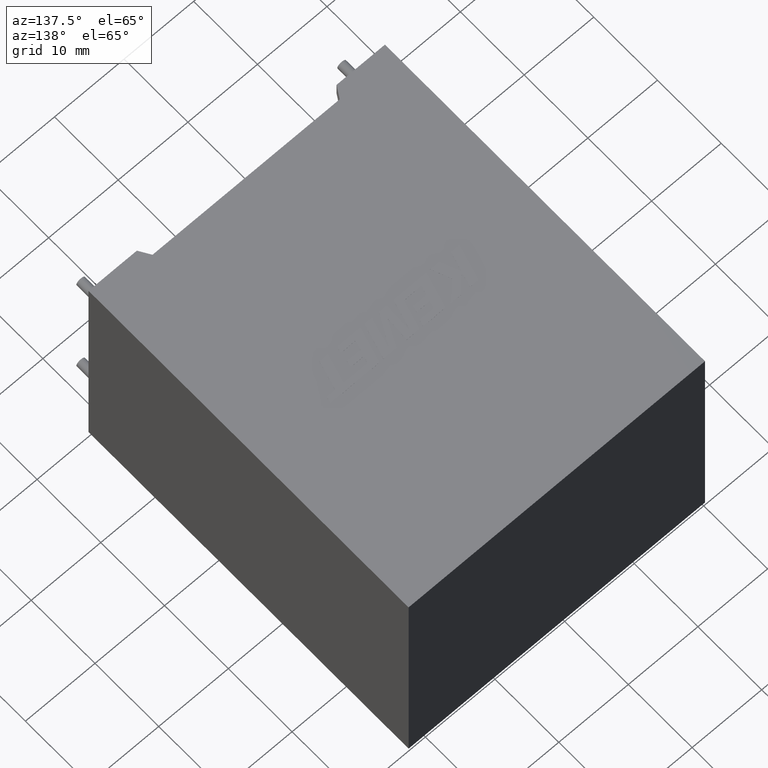
[diagram: clean part render]
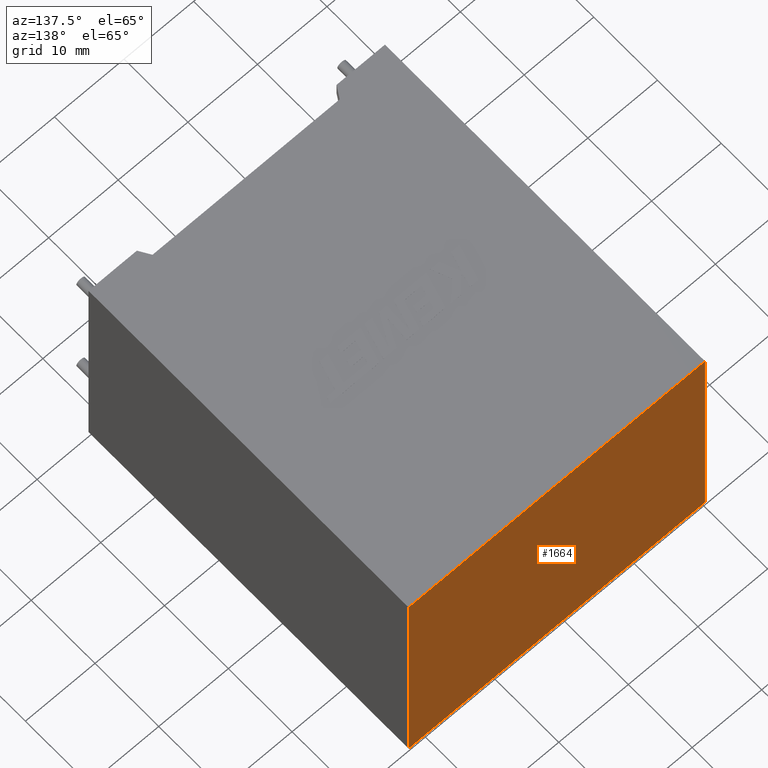
[diagram: same view with one face highlighted and labeled with its STEP entity id]
A machine part, auxiliary view. The second image highlights one B-rep face of the part: STEP entity #1664.
In plain terms, the highlighted planar face has unit normal (0, -1, 0).
Its self-contained STEP definition (entity closure, byte-faithful):
#249 = LINE ( 'NONE', #2779, #2996 ) ;
#334 = PLANE ( 'NONE',  #3374 ) ;
#403 = VECTOR ( 'NONE', #529, 1000.000000000000000 ) ;
#529 = DIRECTION ( 'NONE',  ( -0.0000000000000000000, -0.0000000000000000000, -1.000000000000000000 ) ) ;
#585 = ORIENTED_EDGE ( 'NONE', *, *, #960, .T. ) ;
#599 = CARTESIAN_POINT ( 'NONE',  ( 0.0000000000000000000, 50.20000000000000300, 35.39999999999999900 ) ) ;
#937 = FACE_OUTER_BOUND ( 'NONE', #1976, .T. ) ;
#960 = EDGE_CURVE ( 'NONE', #2933, #1515, #3245, .T. ) ;
#1062 = ORIENTED_EDGE ( 'NONE', *, *, #1765, .F. ) ;
#1139 = CARTESIAN_POINT ( 'NONE',  ( 0.0000000000000000000, 50.20000000000000300, 0.0000000000000000000 ) ) ;
#1515 = VERTEX_POINT ( 'NONE', #2657 ) ;
#1550 = CARTESIAN_POINT ( 'NONE',  ( 42.60000000000000100, 50.20000000000000300, 0.0000000000000000000 ) ) ;
#1664 = ADVANCED_FACE ( 'NONE', ( #937 ), #334, .F. ) ;
#1699 = EDGE_CURVE ( 'NONE', #2065, #1515, #249, .T. ) ;
#1765 = EDGE_CURVE ( 'NONE', #2770, #2065, #1869, .T. ) ;
#1826 = ORIENTED_EDGE ( 'NONE', *, *, #3105, .T. ) ;
#1869 = LINE ( 'NONE', #2616, #2039 ) ;
#1970 = DIRECTION ( 'NONE',  ( 0.0000000000000000000, -0.0000000000000000000, -1.000000000000000000 ) ) ;
#1976 = EDGE_LOOP ( 'NONE', ( #585, #2447, #1062, #1826 ) ) ;
#1980 = DIRECTION ( 'NONE',  ( -0.0000000000000000000, -0.0000000000000000000, -1.000000000000000000 ) ) ;
#2039 = VECTOR ( 'NONE', #2882, 1000.000000000000000 ) ;
#2065 = VERTEX_POINT ( 'NONE', #2959 ) ;
#2447 = ORIENTED_EDGE ( 'NONE', *, *, #1699, .F. ) ;
#2616 = CARTESIAN_POINT ( 'NONE',  ( 0.0000000000000000000, 50.20000000000000300, 35.39999999999999900 ) ) ;
#2657 = CARTESIAN_POINT ( 'NONE',  ( 0.0000000000000000000, 50.20000000000000300, 0.0000000000000000000 ) ) ;
#2715 = DIRECTION ( 'NONE',  ( 0.0000000000000000000, -1.000000000000000000, 0.0000000000000000000 ) ) ;
#2770 = VERTEX_POINT ( 'NONE', #2811 ) ;
#2779 = CARTESIAN_POINT ( 'NONE',  ( 0.0000000000000000000, 50.20000000000000300, 35.39999999999999900 ) ) ;
#2811 = CARTESIAN_POINT ( 'NONE',  ( 42.60000000000000100, 50.20000000000000300, 35.39999999999999900 ) ) ;
#2882 = DIRECTION ( 'NONE',  ( -1.000000000000000000, -0.0000000000000000000, -0.0000000000000000000 ) ) ;
#2933 = VERTEX_POINT ( 'NONE', #1550 ) ;
#2957 = VECTOR ( 'NONE', #3019, 1000.000000000000000 ) ;
#2959 = CARTESIAN_POINT ( 'NONE',  ( 0.0000000000000000000, 50.20000000000000300, 35.39999999999999900 ) ) ;
#2996 = VECTOR ( 'NONE', #1980, 1000.000000000000000 ) ;
#3019 = DIRECTION ( 'NONE',  ( -1.000000000000000000, -0.0000000000000000000, -0.0000000000000000000 ) ) ;
#3105 = EDGE_CURVE ( 'NONE', #2770, #2933, #3390, .T. ) ;
#3186 = CARTESIAN_POINT ( 'NONE',  ( 42.60000000000000100, 50.20000000000000300, 35.39999999999999900 ) ) ;
#3245 = LINE ( 'NONE', #1139, #2957 ) ;
#3374 = AXIS2_PLACEMENT_3D ( 'NONE', #599, #2715, #1970 ) ;
#3390 = LINE ( 'NONE', #3186, #403 ) ;